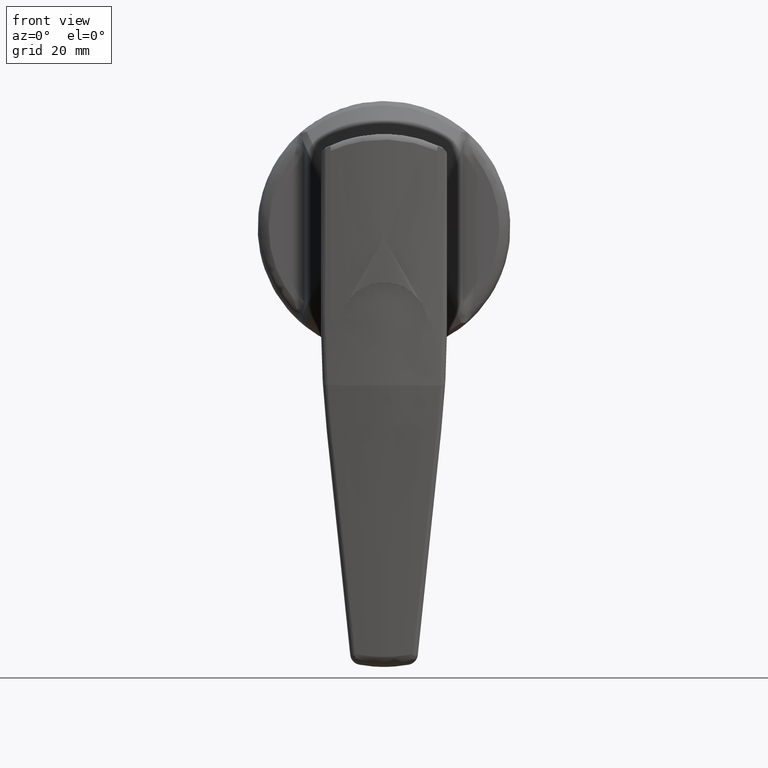
[diagram: clean part render]
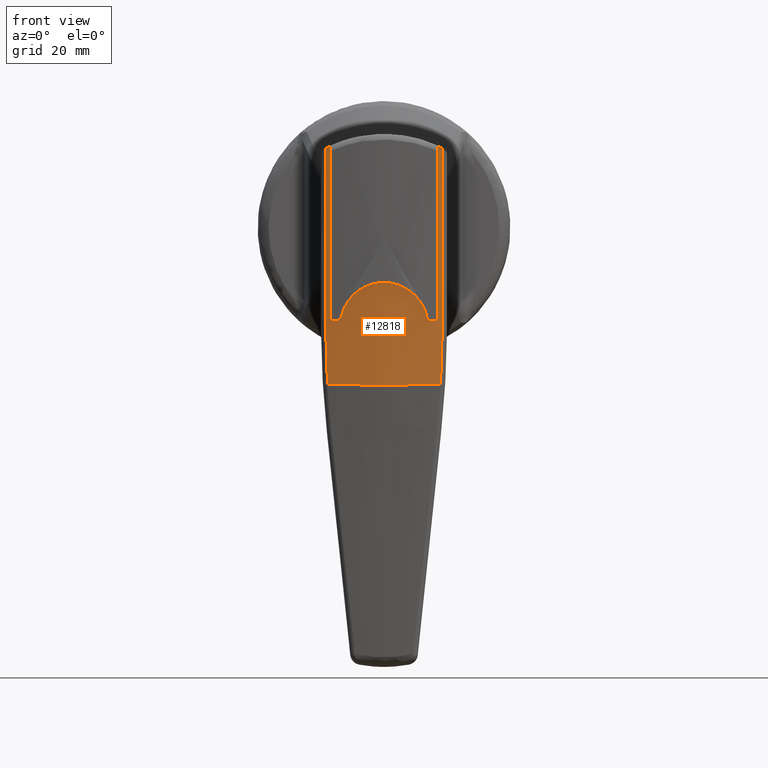
[diagram: same view with one face highlighted and labeled with its STEP entity id]
A machine part, front view. The second image highlights one B-rep face of the part: STEP entity #12818.
In plain terms, the highlighted face is a freeform B-spline surface patch.
Its self-contained STEP definition (entity closure, byte-faithful):
#7918=CARTESIAN_POINT('',(-43.032524413147051,10.677966101694960,14.389854953600000));
#7919=VERTEX_POINT('',#7918);
#7927=CARTESIAN_POINT('',(-43.192839915738702,9.750000000000000,14.822417679329559));
#7928=VERTEX_POINT('',#7927);
#7929=CARTESIAN_POINT('',(-43.192839915738702,9.750000000000000,14.822417679329559));
#7930=CARTESIAN_POINT('',(-43.141346419891377,10.062671214104901,14.684694163694459));
#7931=CARTESIAN_POINT('',(-43.087862446712997,10.371982822245570,14.540501075186439));
#7932=CARTESIAN_POINT('',(-43.032524413147051,10.677966101694960,14.389854953600000));
#7933=QUASI_UNIFORM_CURVE('',3,(#7929,#7930,#7931,#7932),.UNSPECIFIED.,.F.,.U.);
#7934=EDGE_CURVE('',#7928,#7919,#7933,.T.);
#7990=CARTESIAN_POINT('',(-43.192839915738702,-9.750000000000000,14.822417679329799));
#7991=VERTEX_POINT('',#7990);
#8009=CARTESIAN_POINT('',(-43.032524413147001,-10.677966101695301,14.389854953600000));
#8010=VERTEX_POINT('',#8009);
#8011=CARTESIAN_POINT('',(-43.032524413147001,-10.677966101695301,14.389854953600000));
#8012=CARTESIAN_POINT('',(-43.087862446712521,-10.371982822248221,14.540501075192291));
#8013=CARTESIAN_POINT('',(-43.141346419891413,-10.062671214104981,14.684694163694560));
#8014=CARTESIAN_POINT('',(-43.192839915738752,-9.750000000000000,14.822417679329700));
#8015=QUASI_UNIFORM_CURVE('',3,(#8011,#8012,#8013,#8014),.UNSPECIFIED.,.F.,.U.);
#8016=EDGE_CURVE('',#8010,#7991,#8015,.T.);
#8056=CARTESIAN_POINT('',(-43.101720617469297,-10.288011473755359,-28.617123403483351));
#8057=VERTEX_POINT('',#8056);
#8071=CARTESIAN_POINT('',(-43.101720617469297,10.288011473755340,-28.617123403483252));
#8072=VERTEX_POINT('',#8071);
#8073=CARTESIAN_POINT('',(-43.101720617469297,10.288011473755340,-28.617123403483252));
#8074=CARTESIAN_POINT('',(-44.892292183190087,1.457168E-013,-28.719627963843397));
#8075=CARTESIAN_POINT('',(-43.101720617469297,-10.288011473755359,-28.617123403483351));
#8083=(BOUNDED_CURVE()B_SPLINE_CURVE(2,(#8073,#8074,#8075),.UNSPECIFIED.,.F.,.U.)CURVE()GEOMETRIC_REPRESENTATION_ITEM()QUASI_UNIFORM_CURVE()RATIONAL_B_SPLINE_CURVE((1.0,0.985189888622144,1.0))REPRESENTATION_ITEM(''));
#8084=EDGE_CURVE('',#8072,#8057,#8083,.T.);
#8277=CARTESIAN_POINT('',(-43.032524413147051,10.677966101694899,-16.269321783100999));
#8278=VERTEX_POINT('',#8277);
#8302=CARTESIAN_POINT('',(-43.032524413147051,10.677966101694899,-16.269321783100999));
#8303=CARTESIAN_POINT('',(-43.032524413147051,10.677966101694899,-20.389489952170699));
#8304=CARTESIAN_POINT('',(-43.056477173213523,10.547964821907820,-24.505418334889740));
#8305=CARTESIAN_POINT('',(-43.101720617469297,10.288011473755340,-28.617123403483252));
#8306=QUASI_UNIFORM_CURVE('',3,(#8302,#8303,#8304,#8305),.UNSPECIFIED.,.F.,.U.);
#8307=EDGE_CURVE('',#8278,#8072,#8306,.T.);
#8528=CARTESIAN_POINT('',(-43.032524413147051,-10.677966101694899,-16.269321783101098));
#8529=VERTEX_POINT('',#8528);
#8543=CARTESIAN_POINT('',(-43.101720617469297,-10.288011473755359,-28.617123403483351));
#8544=CARTESIAN_POINT('',(-43.056477173213523,-10.547964821907840,-24.505418334889839));
#8545=CARTESIAN_POINT('',(-43.032524413147051,-10.677966101694899,-20.389489952170798));
#8546=CARTESIAN_POINT('',(-43.032524413147051,-10.677966101694899,-16.269321783101098));
#8547=QUASI_UNIFORM_CURVE('',3,(#8543,#8544,#8545,#8546),.UNSPECIFIED.,.F.,.U.);
#8548=EDGE_CURVE('',#8057,#8529,#8547,.T.);
#8575=CARTESIAN_POINT('',(-43.032524413147051,10.677966101694960,14.389854953600000));
#8576=CARTESIAN_POINT('',(-43.032524413147051,10.677966101694899,-16.269321783100999));
#8577=QUASI_UNIFORM_CURVE('',1,(#8575,#8576),.UNSPECIFIED.,.F.,.U.);
#8578=EDGE_CURVE('',#7919,#8278,#8577,.T.);
#8757=CARTESIAN_POINT('',(-43.032524413147051,-10.677966101694899,-16.269321783101098));
#8758=CARTESIAN_POINT('',(-43.032524413147001,-10.677966101695301,14.389854953600000));
#8759=QUASI_UNIFORM_CURVE('',1,(#8757,#8758),.UNSPECIFIED.,.F.,.U.);
#8760=EDGE_CURVE('',#8529,#8010,#8759,.T.);
#12578=CARTESIAN_POINT('',(-42.833694000639035,-11.724256707814025,-29.755253601437499));
#12579=CARTESIAN_POINT('',(-42.833694000639035,-11.724256707814025,15.936859461348979));
#12580=CARTESIAN_POINT('',(-45.169862483813731,0.000837867944868,-29.755253601437506));
#12581=CARTESIAN_POINT('',(-45.169862483813731,0.000837867944868,15.936859461348982));
#12582=CARTESIAN_POINT('',(-42.833372845728100,11.725868450565446,-29.755253601437506));
#12583=CARTESIAN_POINT('',(-42.833372845728100,11.725868450565446,15.936859461348982));
#12591=(BOUNDED_SURFACE()B_SPLINE_SURFACE(1,2,((#12578,#12580,#12582),(#12579,#12581,#12583)),.UNSPECIFIED.,.F.,.F.,.U.)B_SPLINE_SURFACE_WITH_KNOTS((2,2),(3,3),(0.0,45.692113062786483),(0.0,23.678379674211151),.UNSPECIFIED.)GEOMETRIC_REPRESENTATION_ITEM()RATIONAL_B_SPLINE_SURFACE(((0.998589027420388,0.978546121542717,0.996978185303222),(0.998589027420388,0.978546121542717,0.996978185303222)))REPRESENTATION_ITEM('')SURFACE());
#12592=CARTESIAN_POINT('',(-43.192839915738801,9.750000000000000,-16.500000000000000));
#12593=VERTEX_POINT('',#12592);
#12594=CARTESIAN_POINT('',(-43.192839915738801,9.750000000000000,-16.500000000000000));
#12595=CARTESIAN_POINT('',(-43.192839915738702,9.750000000000000,14.822417679329559));
#12596=QUASI_UNIFORM_CURVE('',1,(#12594,#12595),.UNSPECIFIED.,.F.,.U.);
#12597=EDGE_CURVE('',#12593,#7928,#12596,.T.);
#12598=ORIENTED_EDGE('',*,*,#12597,.T.);
#12599=ORIENTED_EDGE('',*,*,#7934,.T.);
#12600=ORIENTED_EDGE('',*,*,#8578,.T.);
#12601=ORIENTED_EDGE('',*,*,#8307,.T.);
#12602=ORIENTED_EDGE('',*,*,#8084,.T.);
#12603=ORIENTED_EDGE('',*,*,#8548,.T.);
#12604=ORIENTED_EDGE('',*,*,#8760,.T.);
#12605=ORIENTED_EDGE('',*,*,#8016,.T.);
#12606=CARTESIAN_POINT('',(-43.192839915738702,-9.750000000000000,-16.500000000000000));
#12607=VERTEX_POINT('',#12606);
#12608=CARTESIAN_POINT('',(-43.192839915738702,-9.750000000000000,14.822417679329799));
#12609=CARTESIAN_POINT('',(-43.192839915738702,-9.750000000000000,-16.500000000000000));
#12610=QUASI_UNIFORM_CURVE('',1,(#12608,#12609),.UNSPECIFIED.,.F.,.U.);
#12611=EDGE_CURVE('',#7991,#12607,#12610,.T.);
#12612=ORIENTED_EDGE('',*,*,#12611,.T.);
#12613=CARTESIAN_POINT('',(-43.273018703281750,-9.250000000000000,-17.0));
#12614=VERTEX_POINT('',#12613);
#12615=CARTESIAN_POINT('',(-43.192839915738709,-9.750000000000000,-16.500000000000000));
#12616=CARTESIAN_POINT('',(-43.192839915738709,-9.749999999999998,-16.533105166296810));
#12617=CARTESIAN_POINT('',(-43.193383301786199,-9.746702131536608,-16.566018571042431));
#12618=CARTESIAN_POINT('',(-43.194968433658573,-9.737067260993575,-16.614163689792740));
#12619=CARTESIAN_POINT('',(-43.195625999402402,-9.733068867093058,-16.630058422806510));
#12620=CARTESIAN_POINT('',(-43.197202670880223,-9.723473272143659,-16.661535705845701));
#12621=CARTESIAN_POINT('',(-43.198128104427170,-9.717837475519630,-16.677199219083320));
#12622=CARTESIAN_POINT('',(-43.201247923417867,-9.698816632278707,-16.722821672122070));
#12623=CARTESIAN_POINT('',(-43.203784125832577,-9.683329589897822,-16.751584733840360));
#12624=CARTESIAN_POINT('',(-43.209735073896532,-9.646869135646885,-16.805882822259498));
#12625=CARTESIAN_POINT('',(-43.213186534978469,-9.625668434392960,-16.831566847441021));
#12626=CARTESIAN_POINT('',(-43.220684710687642,-9.579421160860751,-16.877551381534211));
#12627=CARTESIAN_POINT('',(-43.224752946756652,-9.554244104355290,-16.898129785990740));
#12628=CARTESIAN_POINT('',(-43.233519674553563,-9.499732595099246,-16.934402385436560));
#12629=CARTESIAN_POINT('',(-43.238172070296258,-9.470681597049852,-16.949832682423789));
#12630=CARTESIAN_POINT('',(-43.247716193703951,-9.410780060024530,-16.974551980031229));
#12631=CARTESIAN_POINT('',(-43.252667500515138,-9.379557153342576,-16.984033497115121));
#12632=CARTESIAN_POINT('',(-43.262804258945764,-9.315284943878968,-16.996801125617122));
#12633=CARTESIAN_POINT('',(-43.267899156255972,-9.282810867724622,-17.0));
#12634=CARTESIAN_POINT('',(-43.273018703281750,-9.250000000000000,-17.0));
#12635=B_SPLINE_CURVE_WITH_KNOTS('',3,(#12615,#12616,#12617,#12618,#12619,#12620,#12621,#12622,#12623,#12624,#12625,#12626,#12627,#12628,#12629,#12630,#12631,#12632,#12633,#12634),.UNSPECIFIED.,.F.,.U.,(4,2,2,2,2,2,2,2,2,4),(0.0,0.125000000000000,0.187500000000000,0.250000000000000,0.375000000000000,0.500000000000000,0.625000000000000,0.750000000000000,0.875000000000000,1.0),.UNSPECIFIED.);
#12636=EDGE_CURVE('',#12607,#12614,#12635,.T.);
#12637=ORIENTED_EDGE('',*,*,#12636,.T.);
#12638=CARTESIAN_POINT('',(-43.345192364419553,-8.774963999999999,-17.0));
#12639=VERTEX_POINT('',#12638);
#12640=CARTESIAN_POINT('',(-43.273018703281643,-9.249999999999995,-17.0));
#12641=CARTESIAN_POINT('',(-43.310056578393272,-9.012626495084243,-17.000000000000004));
#12642=CARTESIAN_POINT('',(-43.345192364419503,-8.774963999999995,-17.0));
#12650=(BOUNDED_CURVE()B_SPLINE_CURVE(2,(#12640,#12641,#12642),.UNSPECIFIED.,.F.,.U.)CURVE()GEOMETRIC_REPRESENTATION_ITEM()QUASI_UNIFORM_CURVE()RATIONAL_B_SPLINE_CURVE((1.0,0.999991983709583,1.0))REPRESENTATION_ITEM(''));
#12651=EDGE_CURVE('',#12614,#12639,#12650,.T.);
#12652=ORIENTED_EDGE('',*,*,#12651,.T.);
#12653=CARTESIAN_POINT('',(-43.481171079921253,-7.799968356974010,-16.222222277615899));
#12654=VERTEX_POINT('',#12653);
#12655=CARTESIAN_POINT('',(-43.345192364419603,-8.774963999999999,-17.0));
#12656=CARTESIAN_POINT('',(-43.361858127380117,-8.662234863821739,-17.0));
#12657=CARTESIAN_POINT('',(-43.377742649940757,-8.552571933962309,-16.981467891168180));
#12658=CARTESIAN_POINT('',(-43.400473020614079,-8.392704130729660,-16.925776298817961));
#12659=CARTESIAN_POINT('',(-43.407671116193342,-8.341563738080243,-16.902924314429519));
#12660=CARTESIAN_POINT('',(-43.421302362255027,-8.243884698235929,-16.849154214414511));
#12661=CARTESIAN_POINT('',(-43.427746740136520,-8.197265971100688,-16.818208582672671));
#12662=CARTESIAN_POINT('',(-43.439897694857713,-8.108673070887949,-16.747834670991100));
#12663=CARTESIAN_POINT('',(-43.445463317731843,-8.067727125067881,-16.709186329380511));
#12664=CARTESIAN_POINT('',(-43.455549667890992,-7.993043762474247,-16.625883367083379));
#12665=CARTESIAN_POINT('',(-43.460088234132421,-7.959174925207867,-16.581125349781519));
#12666=CARTESIAN_POINT('',(-43.468152718043108,-7.898684358404710,-16.485131401204381));
#12667=CARTESIAN_POINT('',(-43.471588700001398,-7.872738546361813,-16.434898576226988));
#12668=CARTESIAN_POINT('',(-43.477262024304530,-7.829755236340490,-16.331252070028480));
#12669=CARTESIAN_POINT('',(-43.479514519978991,-7.812603043267351,-16.277658385959491));
#12670=CARTESIAN_POINT('',(-43.481171079921253,-7.799968356974010,-16.222222277615899));
#12671=B_SPLINE_CURVE_WITH_KNOTS('',3,(#12655,#12656,#12657,#12658,#12659,#12660,#12661,#12662,#12663,#12664,#12665,#12666,#12667,#12668,#12669,#12670),.UNSPECIFIED.,.F.,.U.,(4,2,2,2,2,2,2,4),(0.0,0.250000000000000,0.375000000000000,0.500000000000000,0.625000000000000,0.750000000000000,0.875000000000000,1.0),.UNSPECIFIED.);
#12672=EDGE_CURVE('',#12639,#12654,#12671,.T.);
#12673=ORIENTED_EDGE('',*,*,#12672,.T.);
#12674=CARTESIAN_POINT('',(-43.481171132575298,7.799967955378230,-16.222222215297801));
#12675=VERTEX_POINT('',#12674);
#12676=CARTESIAN_POINT('',(-43.481171132575298,7.799967955378230,-16.222222215297801));
#12677=CARTESIAN_POINT('',(-43.494220864098992,7.700436840917562,-15.785529552331790));
#12678=CARTESIAN_POINT('',(-43.511760563180260,7.564983032282370,-15.359289744667040));
#12679=CARTESIAN_POINT('',(-43.538432011257520,7.350176830303544,-14.839692183270820));
#12680=CARTESIAN_POINT('',(-43.544003539820082,7.304925990760777,-14.736437117036781));
#12681=CARTESIAN_POINT('',(-43.555598628648113,7.209767607373747,-14.531277256797271));
#12682=CARTESIAN_POINT('',(-43.561618330786160,7.159888210955763,-14.429466125329530));
#12683=CARTESIAN_POINT('',(-43.580134537157960,7.004693459386560,-14.128938787072540));
#12684=CARTESIAN_POINT('',(-43.593141156045860,6.893396143257385,-13.934155152639679));
#12685=CARTESIAN_POINT('',(-43.633688865433840,6.536569506232739,-13.366073162758161));
#12686=CARTESIAN_POINT('',(-43.662760157185517,6.268267544565967,-13.008929771588710));
#12687=CARTESIAN_POINT('',(-43.700153944051593,5.894255972741441,-12.589790297039830));
#12688=CARTESIAN_POINT('',(-43.707685282896840,5.817508970024053,-12.507336022058411));
#12689=CARTESIAN_POINT('',(-43.722814419858089,5.660056320369519,-12.345220548851399));
#12690=CARTESIAN_POINT('',(-43.730400875517297,5.579458826859016,-12.265688798179911));
#12691=CARTESIAN_POINT('',(-43.752987384592821,5.333991563379191,-12.033487028294770));
#12692=CARTESIAN_POINT('',(-43.767881277522299,5.164762330431020,-11.886475481431649));
#12693=CARTESIAN_POINT('',(-43.811618797491811,4.640689752963302,-11.468246292714840));
#12694=CARTESIAN_POINT('',(-43.839521370745992,4.269577144376129,-11.219672802041719));
#12695=CARTESIAN_POINT('',(-43.871347880486098,3.777973233042746,-10.947372750572770));
#12696=CARTESIAN_POINT('',(-43.877560385590719,3.678257535985849,-10.894846500203320));
#12697=CARTESIAN_POINT('',(-43.889641155631338,3.475984000751764,-10.793730508562170));
#12698=CARTESIAN_POINT('',(-43.895502122423821,3.373521989341921,-10.745204065400690));
#12699=CARTESIAN_POINT('',(-43.912355400729297,3.064805493935106,-10.606906875648010));
#12700=CARTESIAN_POINT('',(-43.922675336905591,2.856281138196058,-10.523922948300649));
#12701=CARTESIAN_POINT('',(-43.950631939949872,2.222746063427677,-10.301969080930860));
#12702=CARTESIAN_POINT('',(-43.965267626780708,1.789828496680052,-10.189807670236700));
#12703=CARTESIAN_POINT('',(-43.977713704451958,1.235225468027638,-10.095135678877559));
#12704=CARTESIAN_POINT('',(-43.979910337299941,1.123627642111609,-10.078492936168040));
#12705=CARTESIAN_POINT('',(-43.983696234941263,0.899052781126796,-10.049873124458641));
#12706=CARTESIAN_POINT('',(-43.985282624802828,0.786128315915536,-10.037917784003280));
#12707=CARTESIAN_POINT('',(-43.989072557971568,0.448571103552017,-10.009393781536639));
#12708=CARTESIAN_POINT('',(-43.990327043984280,0.224061815843533,-10.000001921175491));
#12709=CARTESIAN_POINT('',(-43.990327812336922,-0.447917816703331,-9.999996158530607));
#12710=CARTESIAN_POINT('',(-43.985311524407933,-0.893850526778506,-10.037355919918330));
#12711=CARTESIAN_POINT('',(-43.972938897807097,-1.448663082183014,-10.131452350101890));
#12712=CARTESIAN_POINT('',(-43.970159246141598,-1.559494577771071,-10.152657187040990));
#12713=CARTESIAN_POINT('',(-43.963993942030569,-1.780891107303641,-10.199920550012090));
#12714=CARTESIAN_POINT('',(-43.960609696839249,-1.891343886960092,-10.225969262170491));
#12715=CARTESIAN_POINT('',(-43.949673639869729,-2.219143137869200,-10.310634214743670));
#12716=CARTESIAN_POINT('',(-43.941311073162240,-2.433978441210283,-10.375969206548429));
#12717=CARTESIAN_POINT('',(-43.913346040977260,-3.067678374062167,-10.597991099681501));
#12718=CARTESIAN_POINT('',(-43.890864273177328,-3.475811786398876,-10.780512258140030));
#12719=CARTESIAN_POINT('',(-43.859065614533073,-3.967858045581254,-11.052428880755990));
#12720=CARTESIAN_POINT('',(-43.852521190258557,-4.065355281077890,-11.109015098433460));
#12721=CARTESIAN_POINT('',(-43.839091571404730,-4.258495755794494,-11.226669919981299));
#12722=CARTESIAN_POINT('',(-43.832219913117846,-4.353929843942137,-11.287624461073280));
#12723=CARTESIAN_POINT('',(-43.811339315677507,-4.634844958908017,-11.475509671010331));
#12724=CARTESIAN_POINT('',(-43.797009906834461,-4.815749714779978,-11.607933684586991));
#12725=CARTESIAN_POINT('',(-43.753268942861610,-5.339824448560933,-12.026215333416880));
#12726=CARTESIAN_POINT('',(-43.723100909776242,-5.664486333552517,-12.332933528020920));
#12727=CARTESIAN_POINT('',(-43.685691387436421,-6.038971105902748,-12.751814030459981));
#12728=CARTESIAN_POINT('',(-43.678224768456367,-6.112290402236720,-12.837376204341799));
#12729=CARTESIAN_POINT('',(-43.663362916525919,-6.255718861574523,-13.012138740731450));
#12730=CARTESIAN_POINT('',(-43.655985924114063,-6.325647493814978,-13.101136213492790));
#12731=CARTESIAN_POINT('',(-43.634222136028498,-6.528732633487587,-13.371136137294259));
#12732=CARTESIAN_POINT('',(-43.620143498583957,-6.655774690287495,-13.555832007301120));
#12733=CARTESIAN_POINT('',(-43.579613427461680,-7.012435039851924,-14.123710754774381));
#12734=CARTESIAN_POINT('',(-43.554864326626927,-7.217760733080400,-14.520587679964020));
#12735=CARTESIAN_POINT('',(-43.528135104526363,-7.433123547459875,-15.040046776720940));
#12736=CARTESIAN_POINT('',(-43.522999865094597,-7.474117526204752,-15.145114514438291));
#12737=CARTESIAN_POINT('',(-43.513186458662702,-7.551872159689122,-15.357646727838199));
#12738=CARTESIAN_POINT('',(-43.508517848123162,-7.588556158314565,-15.464938375136130));
#12739=CARTESIAN_POINT('',(-43.495366207215767,-7.691235750042551,-15.787358891218901));
#12740=CARTESIAN_POINT('',(-43.487693024413318,-7.750225080698545,-16.003974531547499));
#12741=CARTESIAN_POINT('',(-43.481171079921182,-7.799968356974012,-16.222222277615899));
#12742=B_SPLINE_CURVE_WITH_KNOTS('',3,(#12676,#12677,#12678,#12679,#12680,#12681,#12682,#12683,#12684,#12685,#12686,#12687,#12688,#12689,#12690,#12691,#12692,#12693,#12694,#12695,#12696,#12697,#12698,#12699,#12700,#12701,#12702,#12703,#12704,#12705,#12706,#12707,#12708,#12709,#12710,#12711,#12712,#12713,#12714,#12715,#12716,#12717,#12718,#12719,#12720,#12721,#12722,#12723,#12724,#12725,#12726,#12727,#12728,#12729,#12730,#12731,#12732,#12733,#12734,#12735,#12736,#12737,#12738,#12739,#12740,#12741),.UNSPECIFIED.,.F.,.U.,(4,2,2,2,2,2,2,2,2,2,2,2,2,2,2,2,2,2,2,2,2,2,2,2,2,2,2,2,2,2,2,2,4),(0.0,0.062500000000000,0.078125000000000,0.093750000000000,0.125000000000001,0.187500000000001,0.203125000000001,0.218750000000001,0.250000000000001,0.312500000000001,0.328125000000001,0.343750000000001,0.375000000000000,0.437500000000000,0.453125000000000,0.468750000000000,0.500000000000000,0.562499999999999,0.578124999999999,0.593749999999999,0.624999999999999,0.687499999999999,0.703124999999999,0.718749999999999,0.749999999999999,0.812499999999999,0.828124999999999,0.843749999999999,0.874999999999999,0.937500000000000,0.953125000000000,0.968750000000000,1.0),.UNSPECIFIED.);
#12743=EDGE_CURVE('',#12675,#12654,#12742,.T.);
#12744=ORIENTED_EDGE('',*,*,#12743,.F.);
#12745=CARTESIAN_POINT('',(-43.345192364419603,8.774963999999999,-17.0));
#12746=VERTEX_POINT('',#12745);
#12747=CARTESIAN_POINT('',(-43.481171132575241,7.799967955378208,-16.222222215297808));
#12748=CARTESIAN_POINT('',(-43.480353521448251,7.806203926621908,-16.249582428986770));
#12749=CARTESIAN_POINT('',(-43.479383077386103,7.813598245123397,-16.276719188428991));
#12750=CARTESIAN_POINT('',(-43.477127957334950,7.830748519499546,-16.330537063394640));
#12751=CARTESIAN_POINT('',(-43.475836334964193,7.840557013912305,-16.357326163606508));
#12752=CARTESIAN_POINT('',(-43.471546348347367,7.873059012927747,-16.435615662807429));
#12753=CARTESIAN_POINT('',(-43.468127835644260,7.898870178234216,-16.485384107157721));
#12754=CARTESIAN_POINT('',(-43.462159423207360,7.943639630814386,-16.556492877045621));
#12755=CARTESIAN_POINT('',(-43.460029059737181,7.959576987005680,-16.579601974251901));
#12756=CARTESIAN_POINT('',(-43.455476387868337,7.993518446951032,-16.624609699841820));
#12757=CARTESIAN_POINT('',(-43.453043827413623,8.011598039511869,-16.646579990255209));
#12758=CARTESIAN_POINT('',(-43.445426055887189,8.068002958750663,-16.709492198602049));
#12759=CARTESIAN_POINT('',(-43.439894050855330,8.108696507837051,-16.747801043955871));
#12760=CARTESIAN_POINT('',(-43.430903502793257,8.174251474762411,-16.799952595555709));
#12761=CARTESIAN_POINT('',(-43.427790654310790,8.196859584039228,-16.816446444695881));
#12762=CARTESIAN_POINT('',(-43.421323725954423,8.243616976405679,-16.847620111445771));
#12763=CARTESIAN_POINT('',(-43.417957569604113,8.267851987673630,-16.862336908584300));
#12764=CARTESIAN_POINT('',(-43.407667482935352,8.341591535098354,-16.902960937402479));
#12765=CARTESIAN_POINT('',(-43.400505875718977,8.392466777678600,-16.925631887721700));
#12766=CARTESIAN_POINT('',(-43.389300316732047,8.471287317959288,-16.953181568195401));
#12767=CARTESIAN_POINT('',(-43.385487622612082,8.497980996406305,-16.961282990687419));
#12768=CARTESIAN_POINT('',(-43.377701427831767,8.552224562358633,-16.975280326564590));
#12769=CARTESIAN_POINT('',(-43.373716349186083,8.579853537357099,-16.981182743687580));
#12770=CARTESIAN_POINT('',(-43.361683716278762,8.662861190098044,-16.995280682312330));
#12771=CARTESIAN_POINT('',(-43.353513942084867,8.718675892214739,-17.0));
#12772=CARTESIAN_POINT('',(-43.345192364419603,8.774963999999999,-17.0));
#12773=B_SPLINE_CURVE_WITH_KNOTS('',3,(#12747,#12748,#12749,#12750,#12751,#12752,#12753,#12754,#12755,#12756,#12757,#12758,#12759,#12760,#12761,#12762,#12763,#12764,#12765,#12766,#12767,#12768,#12769,#12770,#12771,#12772),.UNSPECIFIED.,.F.,.U.,(4,2,2,2,2,2,2,2,2,2,2,2,4),(0.0,0.062500000000001,0.125000000000002,0.250000000000004,0.312500000000002,0.375000000000001,0.500000000000001,0.562500000000000,0.624999999999999,0.749999999999994,0.812499999999995,0.874999999999996,1.0),.UNSPECIFIED.);
#12774=EDGE_CURVE('',#12675,#12746,#12773,.T.);
#12775=ORIENTED_EDGE('',*,*,#12774,.T.);
#12776=CARTESIAN_POINT('',(-43.273018703281650,9.250000000000000,-17.0));
#12777=VERTEX_POINT('',#12776);
#12778=CARTESIAN_POINT('',(-43.345192364419511,8.774963999999981,-17.0));
#12779=CARTESIAN_POINT('',(-43.310056578393407,9.012626495083369,-17.0));
#12780=CARTESIAN_POINT('',(-43.273018703281643,9.249999999999981,-17.0));
#12788=(BOUNDED_CURVE()B_SPLINE_CURVE(2,(#12778,#12779,#12780),.UNSPECIFIED.,.F.,.U.)CURVE()GEOMETRIC_REPRESENTATION_ITEM()QUASI_UNIFORM_CURVE()RATIONAL_B_SPLINE_CURVE((1.0,0.999991983709583,1.0))REPRESENTATION_ITEM(''));
#12789=EDGE_CURVE('',#12746,#12777,#12788,.T.);
#12790=ORIENTED_EDGE('',*,*,#12789,.T.);
#12791=CARTESIAN_POINT('',(-43.273018703281750,9.250000000000000,-17.0));
#12792=CARTESIAN_POINT('',(-43.267892456018863,9.282853809139763,-17.0));
#12793=CARTESIAN_POINT('',(-43.262822947870987,9.315164810785289,-16.996793376626421));
#12794=CARTESIAN_POINT('',(-43.255302560552273,9.362850331144356,-16.987367757106220));
#12795=CARTESIAN_POINT('',(-43.252809888736657,9.378614389878214,-16.983450943427659));
#12796=CARTESIAN_POINT('',(-43.247854355512857,9.409874479476640,-16.974032305646901));
#12797=CARTESIAN_POINT('',(-43.245382077429497,9.425429278251684,-16.968498924582420));
#12798=CARTESIAN_POINT('',(-43.238165493842480,9.470723537728935,-16.949830874778041));
#12799=CARTESIAN_POINT('',(-43.233575306938000,9.499385308525641,-16.934589604193281));
#12800=CARTESIAN_POINT('',(-43.224846211976612,9.553665522619085,-16.898557908657921));
#12801=CARTESIAN_POINT('',(-43.220680739670563,9.579445761420169,-16.877532595195650));
#12802=CARTESIAN_POINT('',(-43.213176319794108,9.625731331330202,-16.831498622636222));
#12803=CARTESIAN_POINT('',(-43.209793294532240,9.646511985992962,-16.806366787994310));
#12804=CARTESIAN_POINT('',(-43.205297850156477,9.674055473274645,-16.765419566990332));
#12805=CARTESIAN_POINT('',(-43.203893273881867,9.682647723393165,-16.751170397732029));
#12806=CARTESIAN_POINT('',(-43.201344489204608,9.698221780218454,-16.722188786827669));
#12807=CARTESIAN_POINT('',(-43.200191966152147,9.705254601336211,-16.707390581038570));
#12808=CARTESIAN_POINT('',(-43.197096278268759,9.724128225555564,-16.662089007328579));
#12809=CARTESIAN_POINT('',(-43.195507609333717,9.733790013474366,-16.630569053734551));
#12810=CARTESIAN_POINT('',(-43.193366948548871,9.746801519446306,-16.565492787438821));
#12811=CARTESIAN_POINT('',(-43.192839915738702,9.749999999999998,-16.532814278342329));
#12812=CARTESIAN_POINT('',(-43.192839915738702,9.750000000000000,-16.500000000000000));
#12813=B_SPLINE_CURVE_WITH_KNOTS('',3,(#12791,#12792,#12793,#12794,#12795,#12796,#12797,#12798,#12799,#12800,#12801,#12802,#12803,#12804,#12805,#12806,#12807,#12808,#12809,#12810,#12811,#12812),.UNSPECIFIED.,.F.,.U.,(4,2,2,2,2,2,2,2,2,2,4),(0.0,0.124999999999999,0.187500000000000,0.250000000000001,0.374999999999999,0.499999999999997,0.624999999999994,0.687499999999994,0.749999999999995,0.874999999999997,1.0),.UNSPECIFIED.);
#12814=EDGE_CURVE('',#12777,#12593,#12813,.T.);
#12815=ORIENTED_EDGE('',*,*,#12814,.T.);
#12816=EDGE_LOOP('',(#12598,#12599,#12600,#12601,#12602,#12603,#12604,#12605,#12612,#12637,#12652,#12673,#12744,#12775,#12790,#12815));
#12817=FACE_OUTER_BOUND('',#12816,.T.);
#12818=ADVANCED_FACE('',(#12817),#12591,.T.);